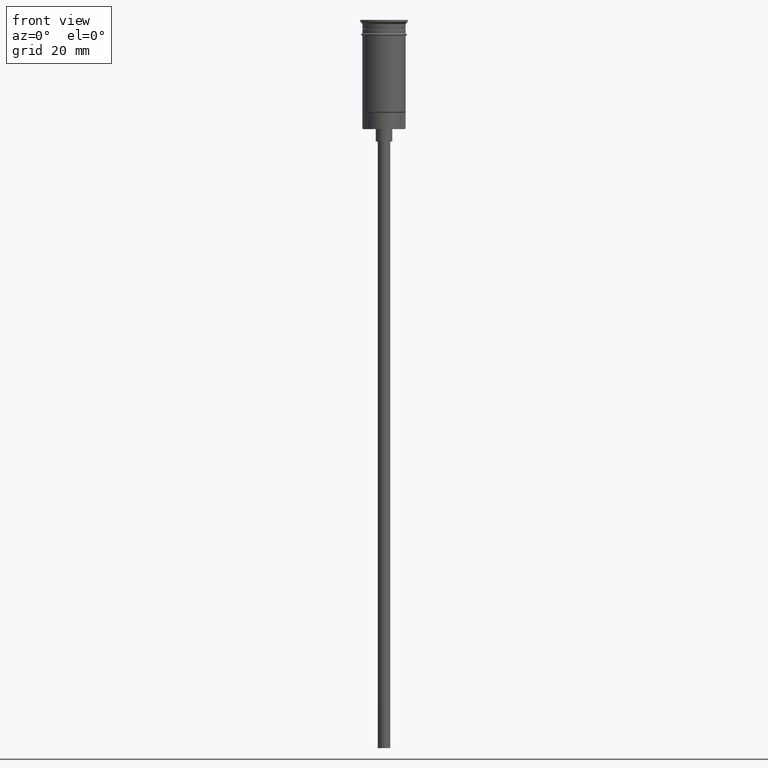
[diagram: clean part render]
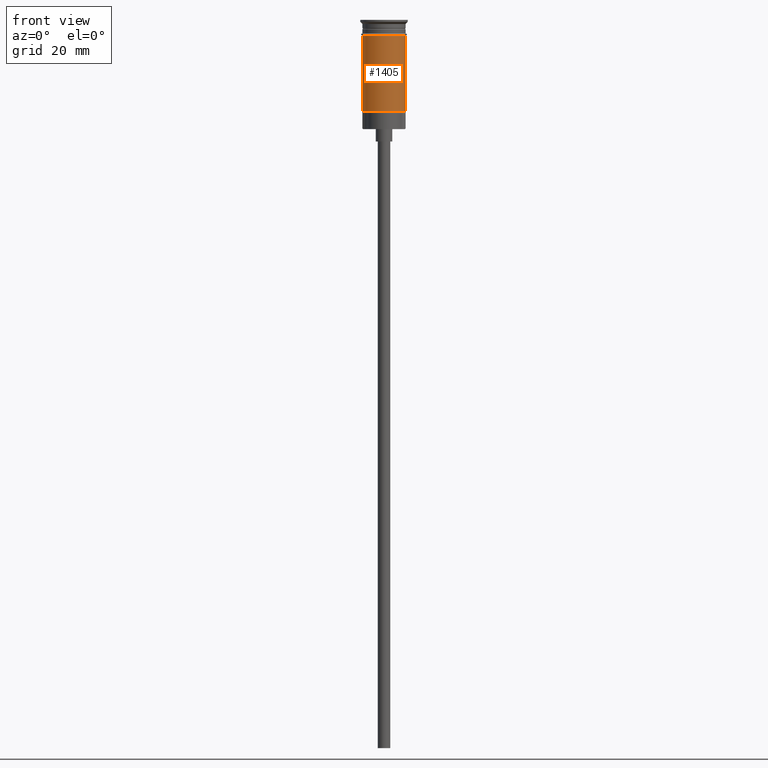
[diagram: same view with one face highlighted and labeled with its STEP entity id]
A machine part, front view. The second image highlights one B-rep face of the part: STEP entity #1405.
In plain terms, the highlighted cylindrical surface (edge-blend (fillet) strip) has radius 5.25 mm, axis along (-0, -0, 1).
Its self-contained STEP definition (entity closure, byte-faithful):
#14 = AXIS2_PLACEMENT_3D ( 'NONE', #166, #660, #1157 ) ;
#82 = CARTESIAN_POINT ( 'NONE',  ( -5.249999999999994671, 0.000000000000000000, -22.29999999999998295 ) ) ;
#86 = VERTEX_POINT ( 'NONE', #1134 ) ;
#127 = DIRECTION ( 'NONE',  ( -0.000000000000000000, -0.000000000000000000, 1.000000000000000000 ) ) ;
#166 = CARTESIAN_POINT ( 'NONE',  ( 0.000000000000000000, 0.000000000000000000, 0.000000000000000000 ) ) ;
#237 = EDGE_CURVE ( 'NONE', #948, #817, #1534, .T. ) ;
#300 = DIRECTION ( 'NONE',  ( 1.000000000000000000, 0.000000000000000000, 0.000000000000000000 ) ) ;
#387 = VECTOR ( 'NONE', #553, 1000.000000000000000 ) ;
#413 = CYLINDRICAL_SURFACE ( 'NONE', #14, 5.249999999999996447 ) ;
#442 = AXIS2_PLACEMENT_3D ( 'NONE', #1600, #127, #1472 ) ;
#503 = CARTESIAN_POINT ( 'NONE',  ( 5.249999999999999112, 0.000000000000000000, -3.799999999999998934 ) ) ;
#505 = CARTESIAN_POINT ( 'NONE',  ( 5.249999999999996447, 0.000000000000000000, 0.000000000000000000 ) ) ;
#528 = EDGE_CURVE ( 'NONE', #86, #817, #1036, .T. ) ;
#535 = DIRECTION ( 'NONE',  ( -0.000000000000000000, -0.000000000000000000, 1.000000000000000000 ) ) ;
#539 = CARTESIAN_POINT ( 'NONE',  ( -5.249999999999996447, 6.429395695523600208E-16, 0.000000000000000000 ) ) ;
#550 = DIRECTION ( 'NONE',  ( -0.000000000000000000, -0.000000000000000000, 1.000000000000000000 ) ) ;
#553 = DIRECTION ( 'NONE',  ( -0.000000000000000000, -0.000000000000000000, 1.000000000000000000 ) ) ;
#660 = DIRECTION ( 'NONE',  ( -0.000000000000000000, -0.000000000000000000, 1.000000000000000000 ) ) ;
#784 = AXIS2_PLACEMENT_3D ( 'NONE', #917, #535, #300 ) ;
#809 = VECTOR ( 'NONE', #550, 1000.000000000000000 ) ;
#817 = VERTEX_POINT ( 'NONE', #503 ) ;
#901 = ORIENTED_EDGE ( 'NONE', *, *, #237, .F. ) ;
#917 = CARTESIAN_POINT ( 'NONE',  ( 0.000000000000000000, 0.000000000000000000, -3.799999999999998934 ) ) ;
#938 = LINE ( 'NONE', #539, #809 ) ;
#947 = EDGE_CURVE ( 'NONE', #1528, #948, #938, .T. ) ;
#948 = VERTEX_POINT ( 'NONE', #1284 ) ;
#951 = EDGE_LOOP ( 'NONE', ( #1033, #1563, #1504, #901 ) ) ;
#1033 = ORIENTED_EDGE ( 'NONE', *, *, #947, .F. ) ;
#1036 = LINE ( 'NONE', #505, #387 ) ;
#1134 = CARTESIAN_POINT ( 'NONE',  ( 5.249999999999996447, 6.429395695523600208E-16, -22.29999999999998295 ) ) ;
#1157 = DIRECTION ( 'NONE',  ( 1.000000000000000000, 0.000000000000000000, 0.000000000000000000 ) ) ;
#1163 = FACE_OUTER_BOUND ( 'NONE', #951, .T. ) ;
#1229 = EDGE_CURVE ( 'NONE', #1528, #86, #1253, .T. ) ;
#1253 = CIRCLE ( 'NONE', #442, 5.249999999999996447 ) ;
#1284 = CARTESIAN_POINT ( 'NONE',  ( -5.249999999999999112, 6.429395695523603167E-16, -3.799999999999998934 ) ) ;
#1405 = ADVANCED_FACE ( 'NONE', ( #1163 ), #413, .T. ) ;
#1472 = DIRECTION ( 'NONE',  ( -1.000000000000000000, 0.000000000000000000, 0.000000000000000000 ) ) ;
#1504 = ORIENTED_EDGE ( 'NONE', *, *, #528, .T. ) ;
#1528 = VERTEX_POINT ( 'NONE', #82 ) ;
#1534 = CIRCLE ( 'NONE', #784, 5.249999999999999112 ) ;
#1563 = ORIENTED_EDGE ( 'NONE', *, *, #1229, .T. ) ;
#1600 = CARTESIAN_POINT ( 'NONE',  ( 0.000000000000000000, 0.000000000000000000, -22.29999999999998295 ) ) ;